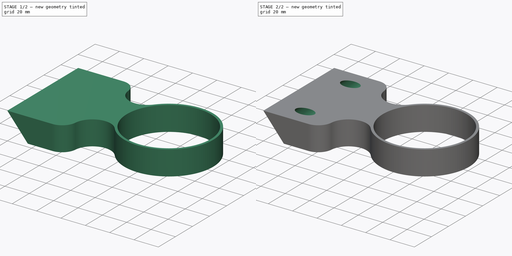
[diagram: build sequence overview — one tinted view per stage of 2, left to right]
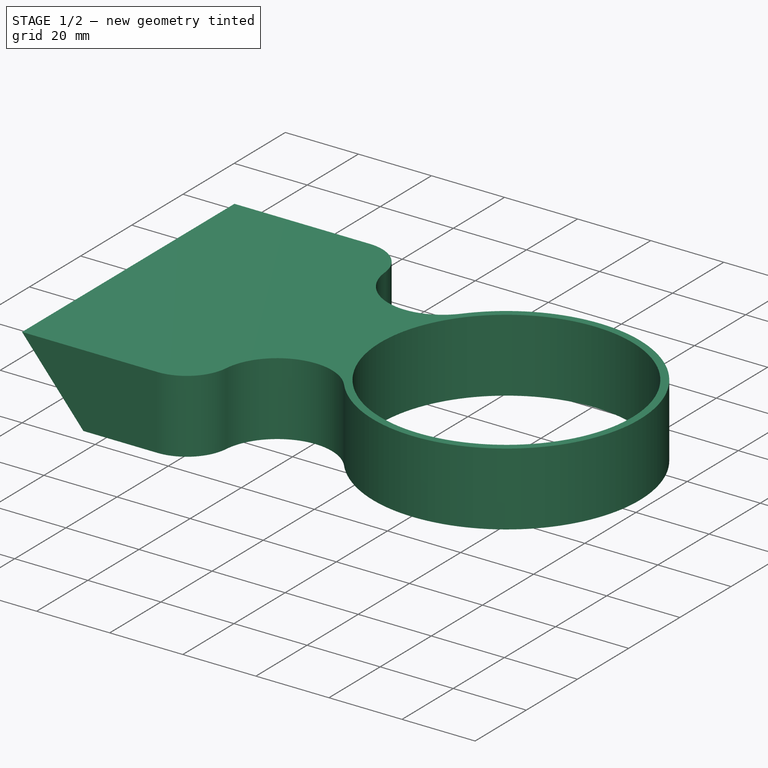
[diagram: stage 1 of 2 — iso view after this stage's code; geometry added in this stage tinted green]
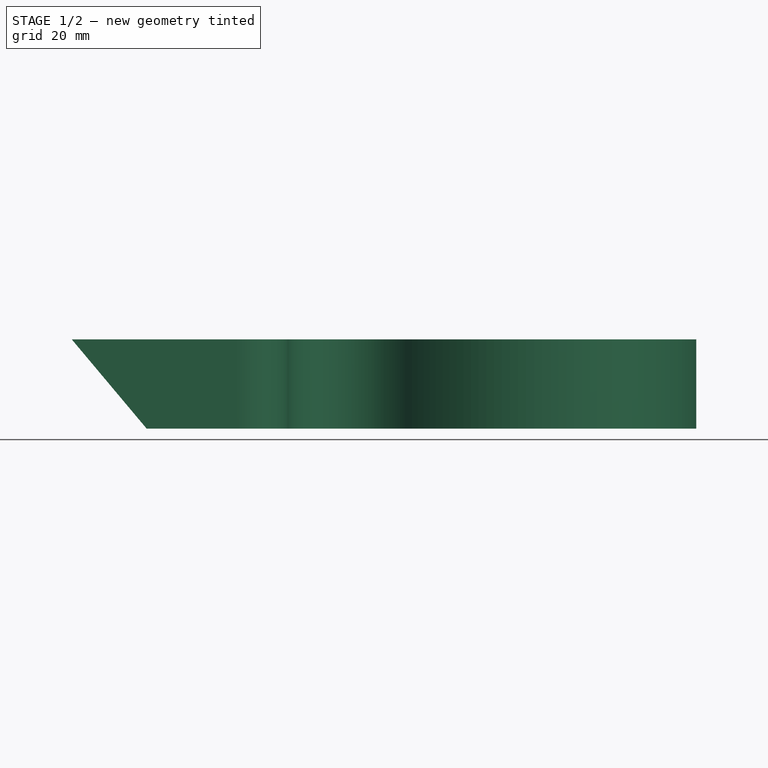
[diagram: stage 1 of 2 — front view after this stage's code; geometry added in this stage tinted green]
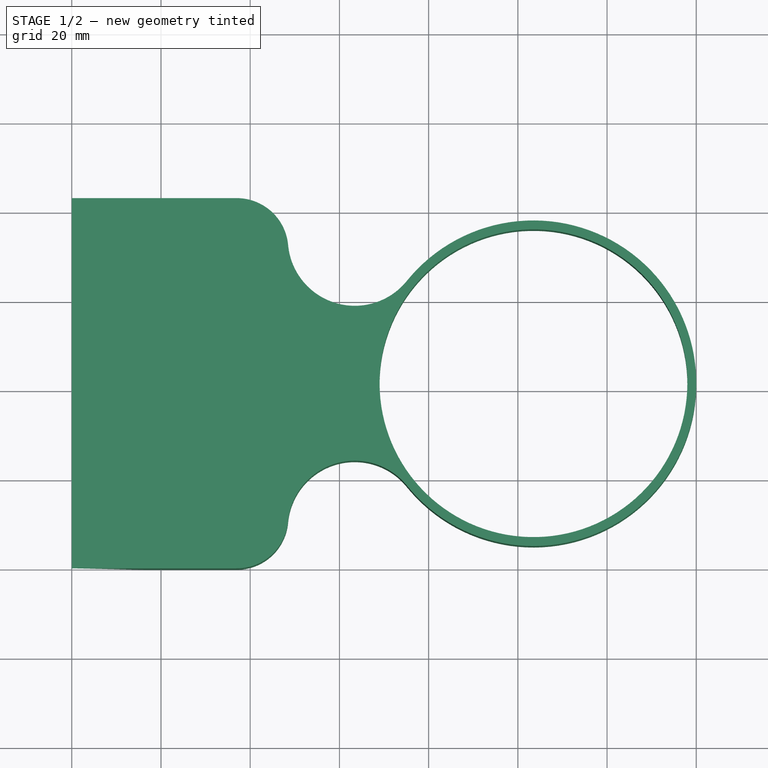
[diagram: stage 1 of 2 — top view after this stage's code; geometry added in this stage tinted green]
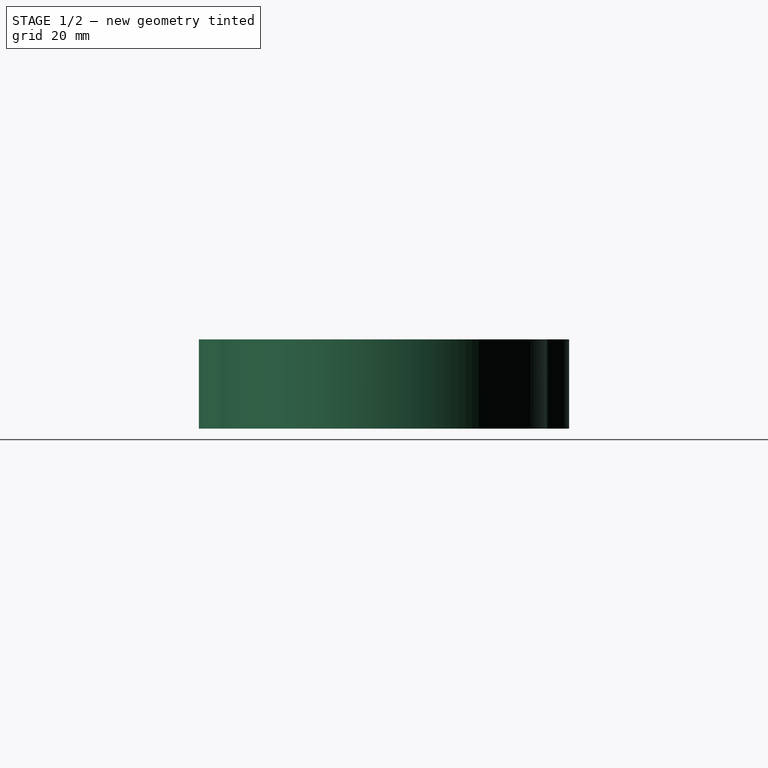
[diagram: stage 1 of 2 — right view after this stage's code; geometry added in this stage tinted green]
FCSTD DOCUMENT  (FreeCAD 0.20R29177 +426 (Git))
Label: Spray Can Holder
License: All rights reserved
LicenseURL: http://en.wikipedia.org/wiki/All_rights_reserved
objects: Sketcher::SketchObject×4, PartDesign::Pocket×3, Spreadsheet::Sheet×1, PartDesign::Pad×1, PartDesign::Body×1, App::Part×1
note: 13 computed .brp shape members not serialized (recipe doc carries the construction recipe); baked Part::Feature solids carry a one-line shape summary decoded from their .brp

FEATURE [Sketcher::SketchObject] Sketch
  FullyConstrained = true
  MapMode = 5
  Support = -> [XY_Plane001]
  expr: Constraints[0] = Spreadsheet.opening_dia
  expr: Constraints[17] = Spreadsheet.opening_dia * 1.5
  expr: Constraints[19] = Spreadsheet.opening_dia + Spreadsheet.wall_thickness * 2 + 10
  expr: Constraints[20] = 83 / 2
  expr: Constraints[2] = Spreadsheet.opening_dia + Spreadsheet.wall_thickness * 2
  sketch-geometry (10):
    g0: Circle CenterX=103.5 CenterY=41.5 CenterZ=0 NormalX=0 NormalY=0 NormalZ=1 AngleXU=0 Radius=34.5
    g1: ArcOfCircle CenterX=103.5 CenterY=41.5 CenterZ=0 NormalX=0 NormalY=0 NormalZ=1 AngleXU=0 Radius=36.5 StartAngle=3.82104 EndAngle=8.74533
    g2: LineSegment StartX=0 StartY=83 StartZ=0 EndX=36.9991 EndY=83 EndZ=0
    g3: ArcOfCircle CenterX=36.9991 CenterY=71.4524 CenterZ=0 NormalX=0 NormalY=0 NormalZ=1 AngleXU=0 Radius=11.5476 StartAngle=0.0908466 EndAngle=1.5708
    g4: ArcOfCircle CenterX=36.9991 CenterY=11.5476 CenterZ=0 NormalX=0 NormalY=0 NormalZ=1 AngleXU=0 Radius=11.5476 StartAngle=4.71239 EndAngle=6.19234
    g5: LineSegment StartX=36.9991 StartY=0 StartZ=0 EndX=0 EndY=0 EndZ=0
    g6: LineSegment StartX=0 StartY=0 StartZ=0 EndX=0 EndY=83 EndZ=0
    g7: GeomPoint X=0 Y=83 Z=0
    g8: ArcOfCircle CenterX=63.4372 CenterY=73.8608 CenterZ=0 NormalX=0 NormalY=0 NormalZ=1 AngleXU=0 Radius=15 StartAngle=3.23244 EndAngle=5.60373
    g9: ArcOfCircle CenterX=63.4372 CenterY=9.13918 CenterZ=0 NormalX=0 NormalY=0 NormalZ=1 AngleXU=0 Radius=15 StartAngle=0.67945 EndAngle=3.05075
  constraints (26):
    c: Diameter(g0) = 69
    c: Coincident(g1,g0)
    c: Diameter(g1) = 73
    c: Tangent(g2,g3) = 1.5708
    c: Tangent(g4,g5) = 1.5708
    c: Horizontal(g2)
    c: Horizontal(g5)
    c: Vertical(g6)
    c: Equal(g3,g4)
    c: PointOnObject(g7,g2)
    c: PointOnObject(g7,g6)
    c: Diameter(g8) = 30
    c: Diameter(g9) = 30
    c: Coincident(g6,g5)
    c: Coincident(g2,g6)
    c: Tangent(g1,g8) = 1.5708
    c: Tangent(g1,g9) = 1.5708
    c: DistanceX(g5,g0) = 103.5
    c: Equal(g2,g5)
    c: DistanceY(g5,g2) = 83
    c: DistanceY(g5,g0) = 41.5
    c: Tangent(g3,g8) = 1.5708
    c: Tangent(g9,g4) = 1.5708
    c: DistanceY(g4,g3) = 62
    c: DistanceX(g2,g3) = 11.5
    c: Coincident(g5,g-1)
FEATURE [Spreadsheet::Sheet] Spreadsheet
  cells = A1=opening_dia; B1(opening_dia)=69; A2=wall_thickness; B2(wall_thickness)=2; A3=mounting_angle; B3(mounting_angle)=50; A4=holder_thickness; B4(holder_thickness)=20
FEATURE [PartDesign::Pad] Pad
  Direction = (0,0,1)
  Length = 20
  Length2 = 10
  Profile = -> Sketch
  ReferenceAxis = -> Sketch [N_Axis]
  Type = 0
  expr: Length = Spreadsheet.holder_thickness
FEATURE [Sketcher::SketchObject] Sketch001
  FullyConstrained = true
  MapMode = 5
  Placement = pos=(0,0,0) rot=(1,0,0;1.5708rad)
  Support = -> [Pad]
  expr: Constraints[5] = Spreadsheet.holder_thickness
  expr: Constraints[7] = Spreadsheet.mounting_angle
  sketch-geometry (3):
    g0: LineSegment StartX=0 StartY=20 StartZ=0 EndX=0 EndY=0 EndZ=0
    g1: LineSegment StartX=0 StartY=0 StartZ=0 EndX=16.782 EndY=0 EndZ=0
    g2: LineSegment StartX=16.782 StartY=0 StartZ=0 EndX=0 EndY=20 EndZ=0
  constraints (8):
    c: Vertical(g0)
    c: Coincident(g1,g0)
    c: Horizontal(g1)
    c: Coincident(g2,g1)
    c: Coincident(g2,g0)
    c: DistanceY(g0,g0) = 20
    c: Coincident(g0,g-1)
    c: Angle(g2,g1) = 0.872665
FEATURE [PartDesign::Pocket] Pocket
  BaseFeature = -> Pad
  Direction = (0,1,-2e-16)
  Length = 0
  Length2 = 5
  Profile = -> Sketch001
  ReferenceAxis = -> Sketch001 [N_Axis]
  Type = 3
  UpToFace = -> Pad [Face4]
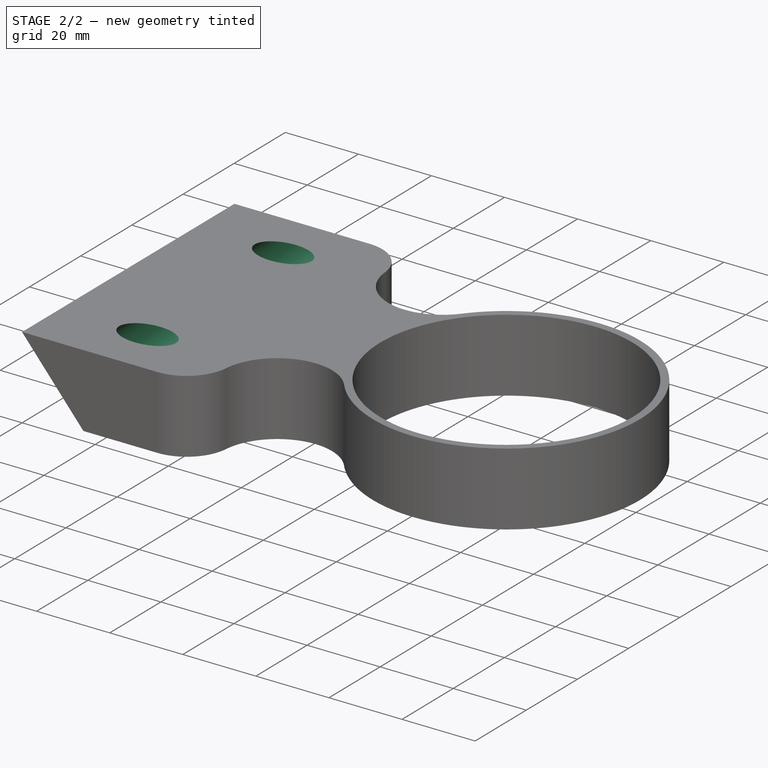
[diagram: stage 2 of 2 — iso view after this stage's code; geometry added in this stage tinted green]
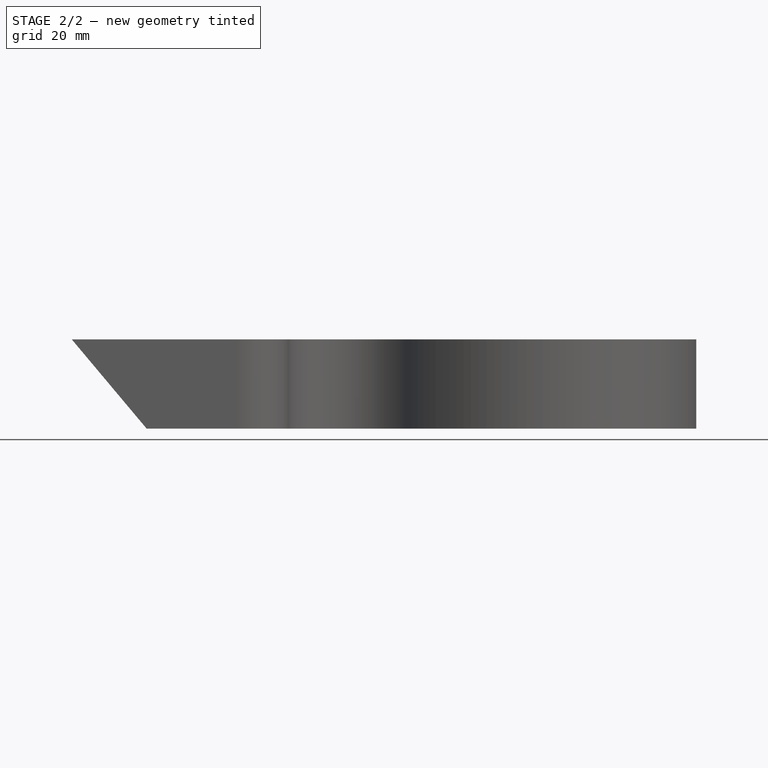
[diagram: stage 2 of 2 — front view after this stage's code; geometry added in this stage tinted green]
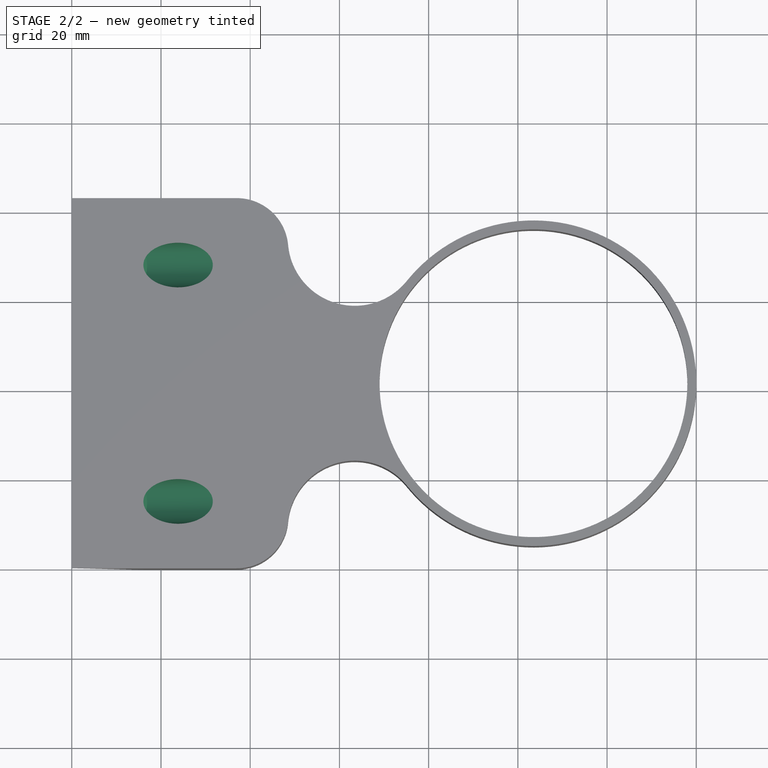
[diagram: stage 2 of 2 — top view after this stage's code; geometry added in this stage tinted green]
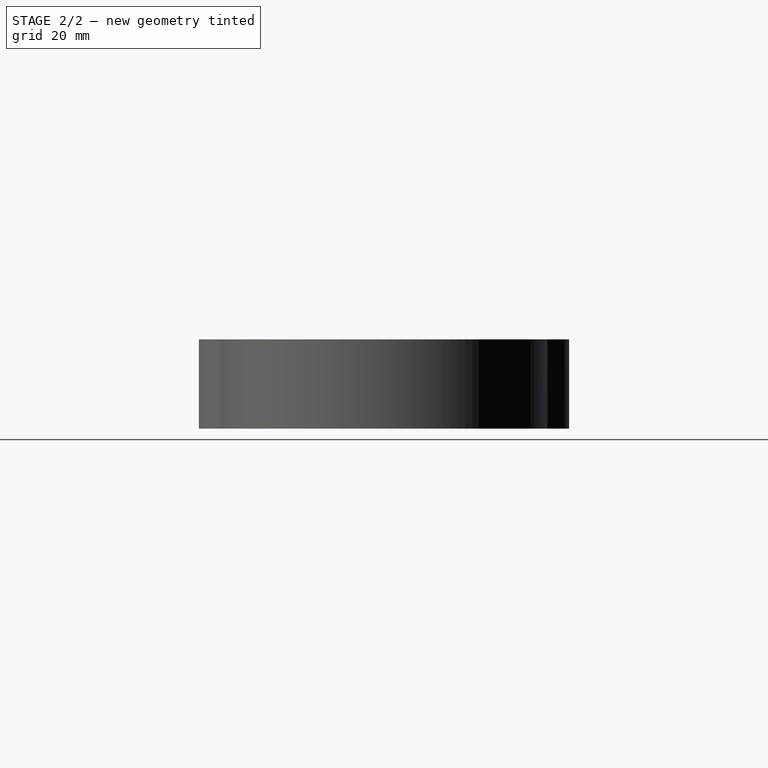
[diagram: stage 2 of 2 — right view after this stage's code; geometry added in this stage tinted green]
FEATURE [Sketcher::SketchObject] Sketch002
  FullyConstrained = true
  MapMode = 5
  Placement = pos=(9.84808,1.8e-15,8.26352) rot=(0.671543,-0.671543,-0.313146;2.53465rad)
  Support = -> [Pocket]
  expr: Constraints[4] = -(Spreadsheet.opening_dia + Spreadsheet.wall_thickness * 2 - 5)
  sketch-geometry (2):
    g0: Circle CenterX=-15 CenterY=0 CenterZ=0 NormalX=0 NormalY=0 NormalZ=1 AngleXU=0 Radius=2
    g1: Circle CenterX=-68 CenterY=0 CenterZ=0 NormalX=0 NormalY=0 NormalZ=1 AngleXU=0 Radius=2
  constraints (6):
    c: Diameter(g0) = 4
    c: DistanceY(g0,g-1) = 0
    c: DistanceX(g0,g-1) = 15
    c: Diameter(g1) = 4
    c: DistanceX(g-1,g1) = -68
    c: DistanceY(g1,g-1) = 0
FEATURE [PartDesign::Pocket] Pocket001
  BaseFeature = -> Pocket
  Direction = (0.766044,2e-16,0.642788)
  Length = 0
  Length2 = 5
  Profile = -> Sketch002
  ReferenceAxis = -> Sketch002 [N_Axis]
  Type = 3
  UpToFace = -> Pocket [Face5]
FEATURE [Sketcher::SketchObject] Sketch003
  AttachmentOffset = pos=(0,0,-5) rot=(0,0,1;0rad)
  FullyConstrained = true
  MapMode = 5
  Placement = pos=(13.6783,2.9e-15,11.4775) rot=(0.671543,-0.671543,-0.313146;2.53465rad)
  Support = -> [Pocket001]
  expr: Constraints[5] = Spreadsheet.opening_dia + Spreadsheet.wall_thickness * 2 - 5
  sketch-geometry (2):
    g0: Circle CenterX=-15 CenterY=0 CenterZ=0 NormalX=0 NormalY=0 NormalZ=1 AngleXU=0 Radius=5
    g1: Circle CenterX=-68 CenterY=0 CenterZ=0 NormalX=0 NormalY=0 NormalZ=1 AngleXU=0 Radius=5
  constraints (6):
    c: Diameter(g0) = 10
    c: DistanceX(g-1,g0) = -15
    c: DistanceY(g0,g-1) = 0
    c: Diameter(g1) = 10
    c: DistanceY(g1,g-1) = 0
    c: DistanceX(g1,g-1) = 68
FEATURE [PartDesign::Pocket] Pocket002
  BaseFeature = -> Pocket001
  Direction = (0.766044,2e-16,0.642788)
  Length = 0
  Length2 = 5
  Profile = -> Sketch003
  ReferenceAxis = -> Sketch003 [N_Axis]
  Type = 3
  UpToFace = -> Pocket001 [Face5]
FEATURE [PartDesign::Body] Body
  Group = -> [Sketch,Pad,Sketch001,Pocket,Sketch002,Pocket001,Sketch003,Pocket002]
  Origin = -> Origin001
  Tip = -> Pocket002
FEATURE [App::Part] Part
  Group = -> [Body]
  Origin = -> Origin
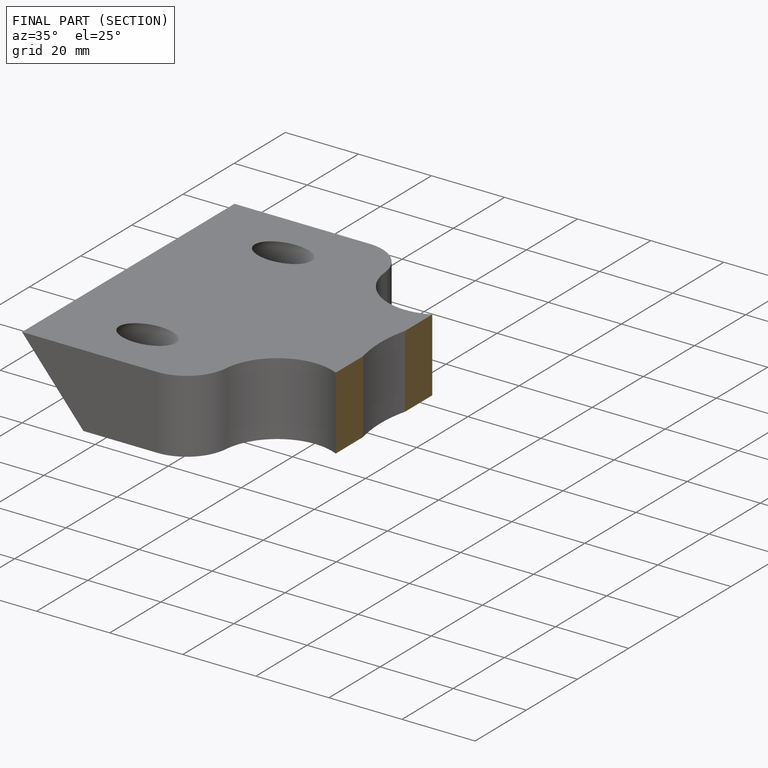
[diagram: finished part — half-section view (interior)]
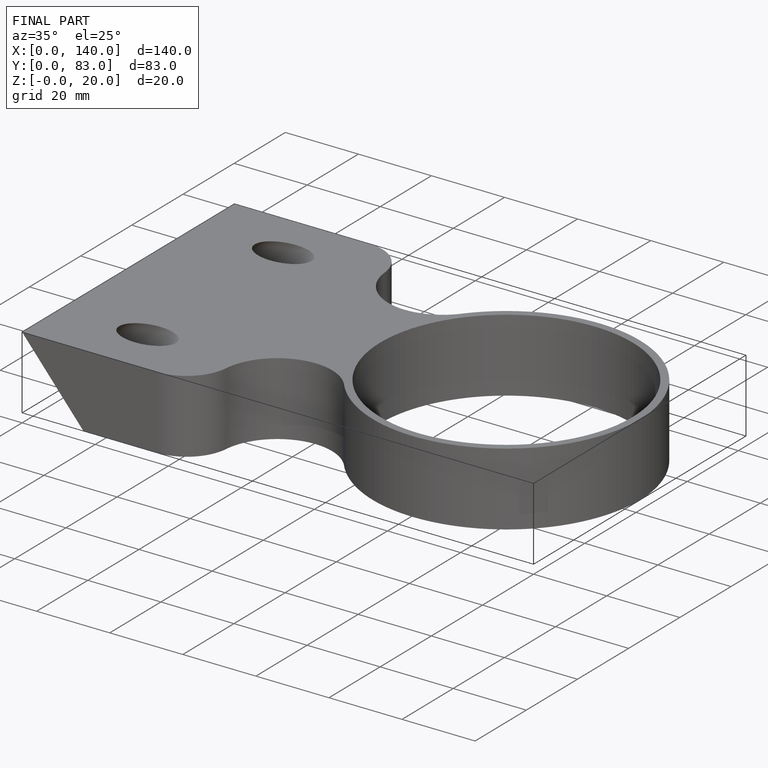
[diagram: finished part — iso view with bounding-box wireframe]
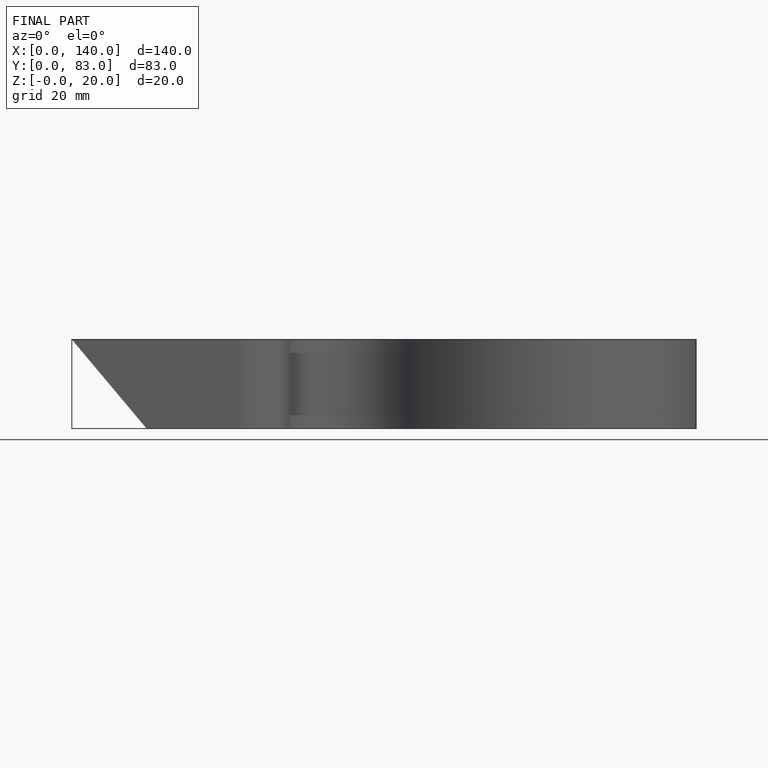
[diagram: finished part — front view with bounding-box wireframe]
